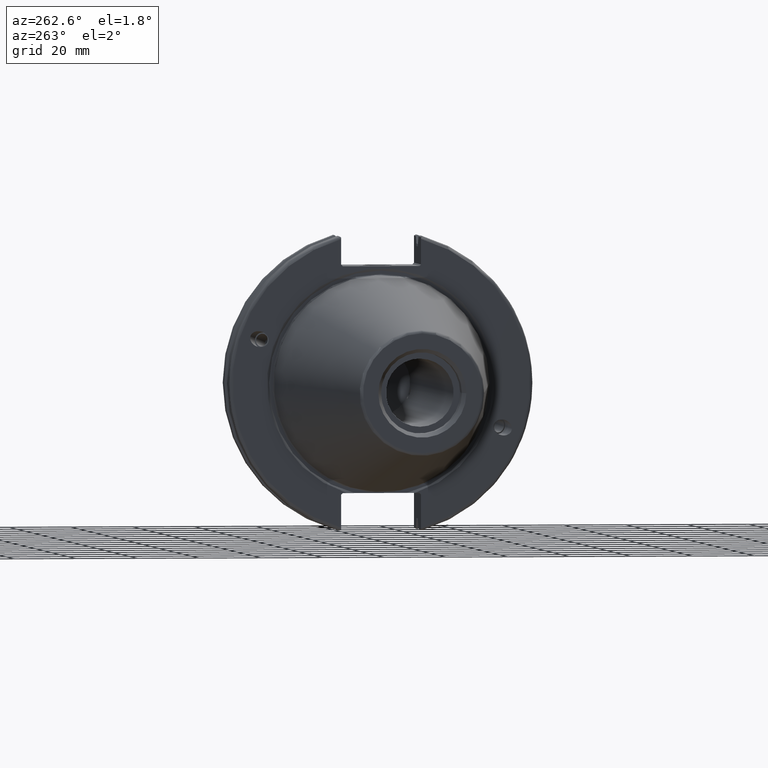
[diagram: clean part render]
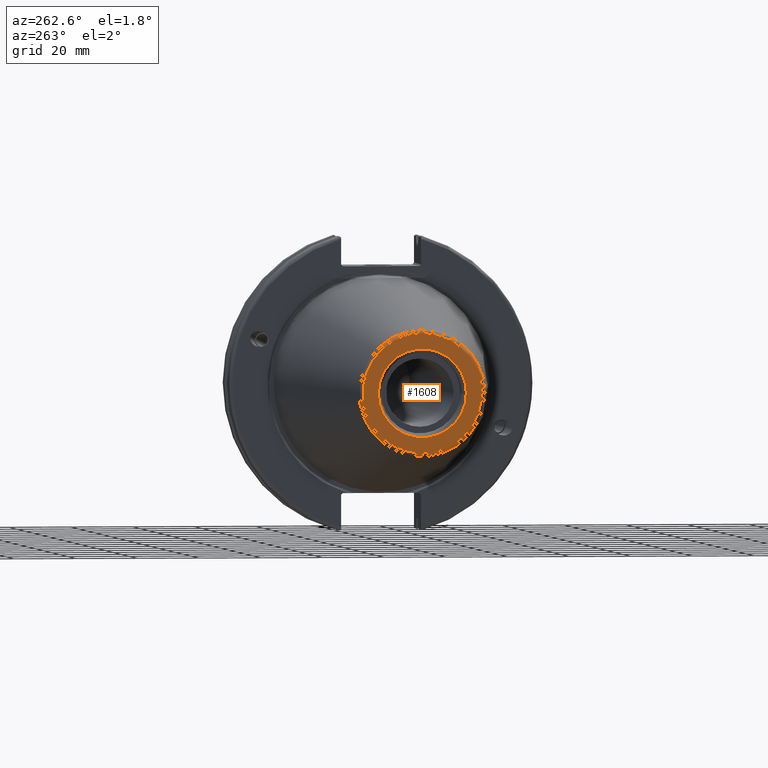
[diagram: same view with one face highlighted and labeled with its STEP entity id]
A machine part, auxiliary view. The second image highlights one B-rep face of the part: STEP entity #1608.
In plain terms, the highlighted planar face has unit normal (-1, 0, 0).
Its self-contained STEP definition (entity closure, byte-faithful):
#76=FACE_BOUND('',#283,.T.);
#101=PLANE('',#1788);
#175=FACE_OUTER_BOUND('',#282,.T.);
#282=EDGE_LOOP('',(#1370));
#283=EDGE_LOOP('',(#1371));
#616=CIRCLE('',#1787,19.2435889303637);
#617=CIRCLE('',#1789,14.2875);
#780=VERTEX_POINT('',#3233);
#781=VERTEX_POINT('',#3237);
#995=EDGE_CURVE('',#780,#780,#616,.T.);
#996=EDGE_CURVE('',#781,#781,#617,.T.);
#1370=ORIENTED_EDGE('',*,*,#995,.F.);
#1371=ORIENTED_EDGE('',*,*,#996,.T.);
#1608=ADVANCED_FACE('',(#175,#76),#101,.T.);
#1787=AXIS2_PLACEMENT_3D('',#3235,#2159,#2160);
#1788=AXIS2_PLACEMENT_3D('',#3236,#2161,#2162);
#1789=AXIS2_PLACEMENT_3D('',#3238,#2163,#2164);
#2159=DIRECTION('center_axis',(1.,0.,0.));
#2160=DIRECTION('ref_axis',(0.,-1.,1.83697019872103E-16));
#2161=DIRECTION('center_axis',(-1.,0.,0.));
#2162=DIRECTION('ref_axis',(0.,0.,1.));
#2163=DIRECTION('center_axis',(1.,0.,0.));
#2164=DIRECTION('ref_axis',(0.,0.,-1.));
#3233=CARTESIAN_POINT('',(-101.6,-2.35665995876774E-15,19.2435889303637));
#3235=CARTESIAN_POINT('Origin',(-101.6,0.,0.));
#3236=CARTESIAN_POINT('Origin',(-101.6,20.1083333333333,0.));
#3237=CARTESIAN_POINT('',(-101.6,-14.2875,-1.74971411428178E-15));
#3238=CARTESIAN_POINT('Origin',(-101.6,0.,0.));